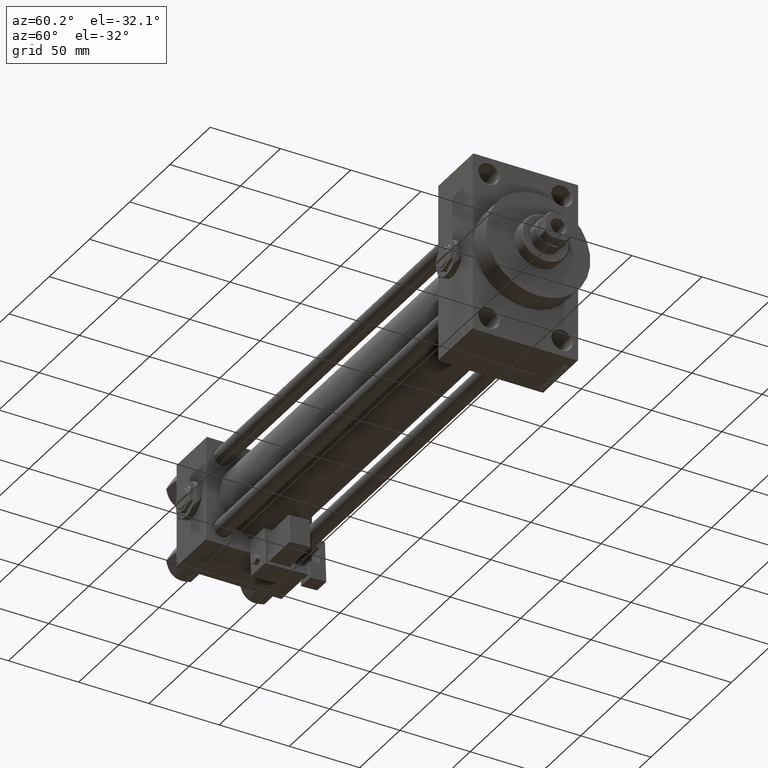
[diagram: clean part render]
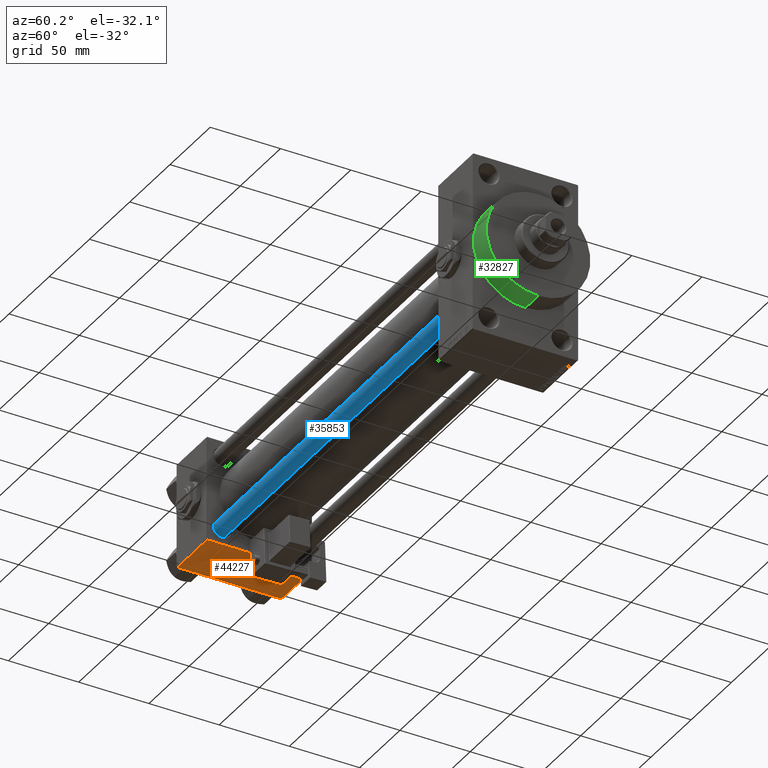
[diagram: same view with three faces highlighted in distinct colors, each labeled with its STEP entity id]
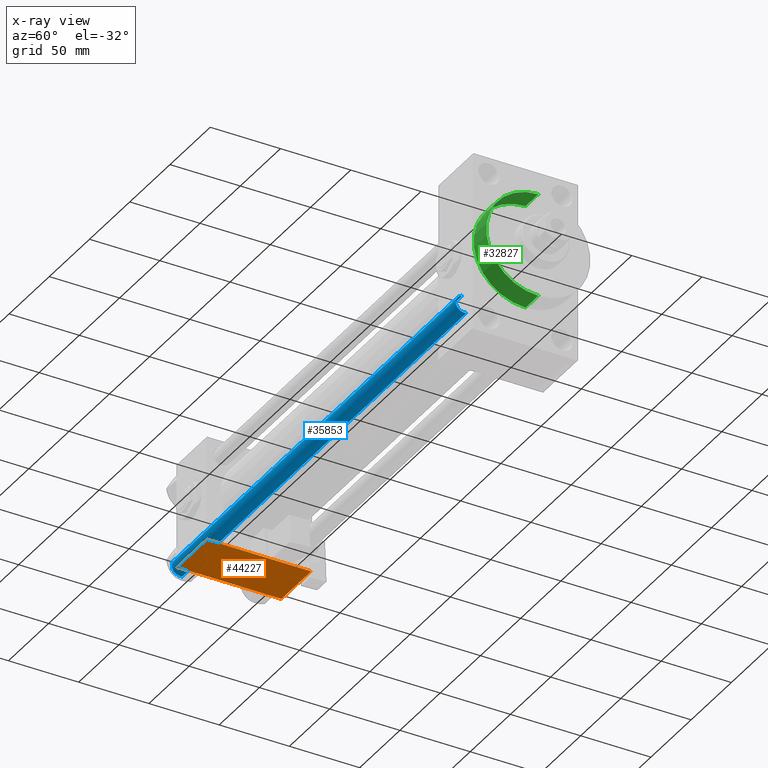
[diagram: x-ray of the same camera — body ghosted, the three highlighted faces saturated]
A machine part, auxiliary view with three faces highlighted in distinct colors.
The next image is the same camera in x-ray (body ghosted, the three faces saturated) — at least one of them is partly hidden behind the body in this view.
Their STEP definitions:

[orange] entity #44227 — the highlighted planar face has unit normal (0, 0, -1).
#913 = DIRECTION ( 'NONE',  ( 0.000000000000000000, -1.000000000000000000, -9.251858538542972814E-17 ) ) ;
#3952 = EDGE_CURVE ( 'NONE', #4732, #41094, #47325, .T. ) ;
#4587 = DIRECTION ( 'NONE',  ( 1.000000000000000000, 0.000000000000000000, 0.000000000000000000 ) ) ;
#4732 = VERTEX_POINT ( 'NONE', #14045 ) ;
#5830 = VECTOR ( 'NONE', #913, 1000.000000000000000 ) ;
#6538 = VERTEX_POINT ( 'NONE', #13356 ) ;
#8803 = DIRECTION ( 'NONE',  ( 0.000000000000000000, 1.000000000000000000, 9.251858538542972814E-17 ) ) ;
#9060 = FACE_OUTER_BOUND ( 'NONE', #28080, .T. ) ;
#11544 = CARTESIAN_POINT ( 'NONE',  ( 0.000000000000000000, -37.00000000000002132, -37.50000000000000711 ) ) ;
#11678 = CARTESIAN_POINT ( 'NONE',  ( 0.000000000000000000, -37.00000000000002132, -37.50000000000000711 ) ) ;
#12595 = VERTEX_POINT ( 'NONE', #50152 ) ;
#12935 = CARTESIAN_POINT ( 'NONE',  ( 37.00000000000000000, 36.99999999999997868, -37.50000000000000000 ) ) ;
#12972 = DIRECTION ( 'NONE',  ( 0.000000000000000000, 9.251858538542972814E-17, -1.000000000000000000 ) ) ;
#13356 = CARTESIAN_POINT ( 'NONE',  ( 37.00000000000000000, 36.99999999999997868, -37.50000000000000000 ) ) ;
#14045 = CARTESIAN_POINT ( 'NONE',  ( 37.00000000000000000, -37.00000000000002132, -37.50000000000000711 ) ) ;
#15166 = ORIENTED_EDGE ( 'NONE', *, *, #3952, .T. ) ;
#19751 = PLANE ( 'NONE',  #45048 ) ;
#24302 = VECTOR ( 'NONE', #47548, 1000.000000000000000 ) ;
#25827 = EDGE_CURVE ( 'NONE', #12595, #6538, #36865, .T. ) ;
#28080 = EDGE_LOOP ( 'NONE', ( #51135, #43081, #44158, #15166 ) ) ;
#28866 = EDGE_CURVE ( 'NONE', #12595, #41094, #40757, .T. ) ;
#28887 = VECTOR ( 'NONE', #35606, 1000.000000000000000 ) ;
#31677 = CARTESIAN_POINT ( 'NONE',  ( 37.00000000000000000, 37.49999999999999289, -37.50000000000000000 ) ) ;
#32488 = CARTESIAN_POINT ( 'NONE',  ( 37.00000000000000000, 37.49999999999999289, -37.50000000000000000 ) ) ;
#35606 = DIRECTION ( 'NONE',  ( -1.000000000000000000, 0.000000000000000000, 0.000000000000000000 ) ) ;
#36070 = CARTESIAN_POINT ( 'NONE',  ( 0.000000000000000000, 37.49999999999999289, -37.50000000000000000 ) ) ;
#36865 = LINE ( 'NONE', #12935, #41487 ) ;
#40757 = LINE ( 'NONE', #36070, #5830 ) ;
#40770 = LINE ( 'NONE', #31677, #24302 ) ;
#41094 = VERTEX_POINT ( 'NONE', #11544 ) ;
#41487 = VECTOR ( 'NONE', #4587, 1000.000000000000000 ) ;
#43081 = ORIENTED_EDGE ( 'NONE', *, *, #25827, .T. ) ;
#44158 = ORIENTED_EDGE ( 'NONE', *, *, #45474, .T. ) ;
#44227 = ADVANCED_FACE ( 'NONE', ( #9060 ), #19751, .T. ) ;
#45048 = AXIS2_PLACEMENT_3D ( 'NONE', #32488, #12972, #8803 ) ;
#45474 = EDGE_CURVE ( 'NONE', #6538, #4732, #40770, .T. ) ;
#47325 = LINE ( 'NONE', #11678, #28887 ) ;
#47548 = DIRECTION ( 'NONE',  ( 0.000000000000000000, -1.000000000000000000, -9.251858538542972814E-17 ) ) ;
#50152 = CARTESIAN_POINT ( 'NONE',  ( 0.000000000000000000, 36.99999999999997868, -37.50000000000000000 ) ) ;
#51135 = ORIENTED_EDGE ( 'NONE', *, *, #28866, .F. ) ;

[blue] entity #35853 — the highlighted cylindrical surface (edge-blend (fillet) strip) has radius 6 mm, axis along (-1, 0, 0).
#1677 = EDGE_CURVE ( 'NONE', #22605, #45160, #37135, .T. ) ;
#2137 = CARTESIAN_POINT ( 'NONE',  ( -6.000000000000000888, 0.000000000000000000, 354.0000000000000000 ) ) ;
#2474 = DIRECTION ( 'NONE',  ( 0.000000000000000000, 0.000000000000000000, -1.000000000000000000 ) ) ;
#2606 = CYLINDRICAL_SURFACE ( 'NONE', #43205, 6.000000000000000888 ) ;
#3254 = VECTOR ( 'NONE', #36420, 1000.000000000000000 ) ;
#3346 = CARTESIAN_POINT ( 'NONE',  ( 0.000000000000000000, 0.000000000000000000, 0.5000000000000559552 ) ) ;
#3447 = CARTESIAN_POINT ( 'NONE',  ( 6.000000000000000888, 7.347880794884120722E-16, 0.5000000000000559552 ) ) ;
#4390 = LINE ( 'NONE', #28349, #3254 ) ;
#5996 = CARTESIAN_POINT ( 'NONE',  ( 0.000000000000000000, 0.000000000000000000, 354.0000000000000000 ) ) ;
#6371 = ORIENTED_EDGE ( 'NONE', *, *, #22230, .T. ) ;
#7379 = VECTOR ( 'NONE', #14139, 1000.000000000000000 ) ;
#7777 = CARTESIAN_POINT ( 'NONE',  ( -6.000000000000000888, 0.000000000000000000, 353.5000000000000000 ) ) ;
#9364 = EDGE_CURVE ( 'NONE', #20439, #32999, #34469, .T. ) ;
#10432 = DIRECTION ( 'NONE',  ( -1.000000000000000000, 0.000000000000000000, 0.000000000000000000 ) ) ;
#10497 = ORIENTED_EDGE ( 'NONE', *, *, #9364, .T. ) ;
#12712 = CARTESIAN_POINT ( 'NONE',  ( 6.000000000000000888, 7.347880794884120722E-16, 353.5000000000000000 ) ) ;
#14139 = DIRECTION ( 'NONE',  ( -0.000000000000000000, -0.000000000000000000, -1.000000000000000000 ) ) ;
#16457 = EDGE_LOOP ( 'NONE', ( #10497, #6371, #40092, #18746 ) ) ;
#18016 = AXIS2_PLACEMENT_3D ( 'NONE', #3346, #19244, #19491 ) ;
#18746 = ORIENTED_EDGE ( 'NONE', *, *, #24936, .F. ) ;
#19244 = DIRECTION ( 'NONE',  ( -0.000000000000000000, -0.000000000000000000, 1.000000000000000000 ) ) ;
#19491 = DIRECTION ( 'NONE',  ( 1.000000000000000000, 0.000000000000000000, 0.000000000000000000 ) ) ;
#19509 = AXIS2_PLACEMENT_3D ( 'NONE', #38152, #2474, #50108 ) ;
#20439 = VERTEX_POINT ( 'NONE', #7777 ) ;
#22230 = EDGE_CURVE ( 'NONE', #32999, #22605, #4390, .T. ) ;
#22605 = VERTEX_POINT ( 'NONE', #3447 ) ;
#24936 = EDGE_CURVE ( 'NONE', #20439, #45160, #49776, .T. ) ;
#26049 = FACE_OUTER_BOUND ( 'NONE', #16457, .T. ) ;
#28349 = CARTESIAN_POINT ( 'NONE',  ( 6.000000000000000888, 7.347880794884120722E-16, 354.0000000000000000 ) ) ;
#32999 = VERTEX_POINT ( 'NONE', #12712 ) ;
#34469 = CIRCLE ( 'NONE', #19509, 6.000000000000000888 ) ;
#35853 = ADVANCED_FACE ( 'NONE', ( #26049 ), #2606, .T. ) ;
#36420 = DIRECTION ( 'NONE',  ( -0.000000000000000000, -0.000000000000000000, -1.000000000000000000 ) ) ;
#37135 = CIRCLE ( 'NONE', #18016, 6.000000000000000888 ) ;
#38152 = CARTESIAN_POINT ( 'NONE',  ( 0.000000000000000000, 0.000000000000000000, 353.5000000000000000 ) ) ;
#39299 = CARTESIAN_POINT ( 'NONE',  ( -6.000000000000000888, 0.000000000000000000, 0.5000000000000559552 ) ) ;
#40092 = ORIENTED_EDGE ( 'NONE', *, *, #1677, .T. ) ;
#43205 = AXIS2_PLACEMENT_3D ( 'NONE', #5996, #50240, #10432 ) ;
#45160 = VERTEX_POINT ( 'NONE', #39299 ) ;
#49776 = LINE ( 'NONE', #2137, #7379 ) ;
#50108 = DIRECTION ( 'NONE',  ( 1.000000000000000000, 0.000000000000000000, 0.000000000000000000 ) ) ;
#50240 = DIRECTION ( 'NONE',  ( -0.000000000000000000, -0.000000000000000000, -1.000000000000000000 ) ) ;

[green] entity #32827 — the highlighted cylindrical surface (partial cylindrical patch) has radius 37 mm, axis along (-1, -0, -0).
#492 = EDGE_CURVE ( 'NONE', #40295, #27411, #40375, .T. ) ;
#998 = CARTESIAN_POINT ( 'NONE',  ( 367.9999999999999432, 0.000000000000000000, 37.00000000000000000 ) ) ;
#2833 = DIRECTION ( 'NONE',  ( 0.000000000000000000, 0.000000000000000000, 1.000000000000000000 ) ) ;
#4477 = VERTEX_POINT ( 'NONE', #42023 ) ;
#4908 = ORIENTED_EDGE ( 'NONE', *, *, #492, .F. ) ;
#7854 = LINE ( 'NONE', #35455, #40555 ) ;
#10948 = CIRCLE ( 'NONE', #16728, 37.00000000000000000 ) ;
#13336 = DIRECTION ( 'NONE',  ( 0.000000000000000000, 0.000000000000000000, -1.000000000000000000 ) ) ;
#14138 = DIRECTION ( 'NONE',  ( 0.000000000000000000, 0.000000000000000000, -1.000000000000000000 ) ) ;
#16728 = AXIS2_PLACEMENT_3D ( 'NONE', #40671, #36508, #13336 ) ;
#17936 = AXIS2_PLACEMENT_3D ( 'NONE', #29236, #40699, #14138 ) ;
#18994 = DIRECTION ( 'NONE',  ( -1.000000000000000000, -0.000000000000000000, -0.000000000000000000 ) ) ;
#19627 = CARTESIAN_POINT ( 'NONE',  ( 383.9999999999999432, 0.000000000000000000, 37.00000000000000000 ) ) ;
#23872 = ORIENTED_EDGE ( 'NONE', *, *, #32155, .T. ) ;
#26908 = EDGE_CURVE ( 'NONE', #27411, #4477, #38625, .T. ) ;
#27411 = VERTEX_POINT ( 'NONE', #43992 ) ;
#28659 = EDGE_LOOP ( 'NONE', ( #41678, #4908, #23872, #40256 ) ) ;
#29236 = CARTESIAN_POINT ( 'NONE',  ( 383.9999999999999432, 0.000000000000000000, 0.000000000000000000 ) ) ;
#30959 = CYLINDRICAL_SURFACE ( 'NONE', #49721, 37.00000000000000000 ) ;
#32155 = EDGE_CURVE ( 'NONE', #40295, #47600, #7854, .T. ) ;
#32827 = ADVANCED_FACE ( 'NONE', ( #51239 ), #30959, .T. ) ;
#35455 = CARTESIAN_POINT ( 'NONE',  ( 383.9999999999999432, 0.000000000000000000, 37.00000000000000000 ) ) ;
#36508 = DIRECTION ( 'NONE',  ( 1.000000000000000000, 0.000000000000000000, 0.000000000000000000 ) ) ;
#38625 = LINE ( 'NONE', #46434, #42347 ) ;
#39545 = CARTESIAN_POINT ( 'NONE',  ( 383.9999999999999432, 0.000000000000000000, 0.000000000000000000 ) ) ;
#40256 = ORIENTED_EDGE ( 'NONE', *, *, #43266, .T. ) ;
#40295 = VERTEX_POINT ( 'NONE', #19627 ) ;
#40375 = CIRCLE ( 'NONE', #17936, 37.00000000000000000 ) ;
#40555 = VECTOR ( 'NONE', #47926, 1000.000000000000000 ) ;
#40671 = CARTESIAN_POINT ( 'NONE',  ( 367.9999999999999432, 0.000000000000000000, 0.000000000000000000 ) ) ;
#40699 = DIRECTION ( 'NONE',  ( 1.000000000000000000, 0.000000000000000000, 0.000000000000000000 ) ) ;
#41678 = ORIENTED_EDGE ( 'NONE', *, *, #26908, .F. ) ;
#42023 = CARTESIAN_POINT ( 'NONE',  ( 367.9999999999999432, 4.531193156845206793E-15, -37.00000000000000000 ) ) ;
#42347 = VECTOR ( 'NONE', #45915, 1000.000000000000000 ) ;
#43266 = EDGE_CURVE ( 'NONE', #47600, #4477, #10948, .T. ) ;
#43992 = CARTESIAN_POINT ( 'NONE',  ( 383.9999999999999432, 4.531193156845206793E-15, -37.00000000000000000 ) ) ;
#45915 = DIRECTION ( 'NONE',  ( -1.000000000000000000, -0.000000000000000000, -0.000000000000000000 ) ) ;
#46434 = CARTESIAN_POINT ( 'NONE',  ( 383.9999999999999432, 4.531193156845206793E-15, -37.00000000000000000 ) ) ;
#47600 = VERTEX_POINT ( 'NONE', #998 ) ;
#47926 = DIRECTION ( 'NONE',  ( -1.000000000000000000, -0.000000000000000000, -0.000000000000000000 ) ) ;
#49721 = AXIS2_PLACEMENT_3D ( 'NONE', #39545, #18994, #2833 ) ;
#51239 = FACE_OUTER_BOUND ( 'NONE', #28659, .T. ) ;